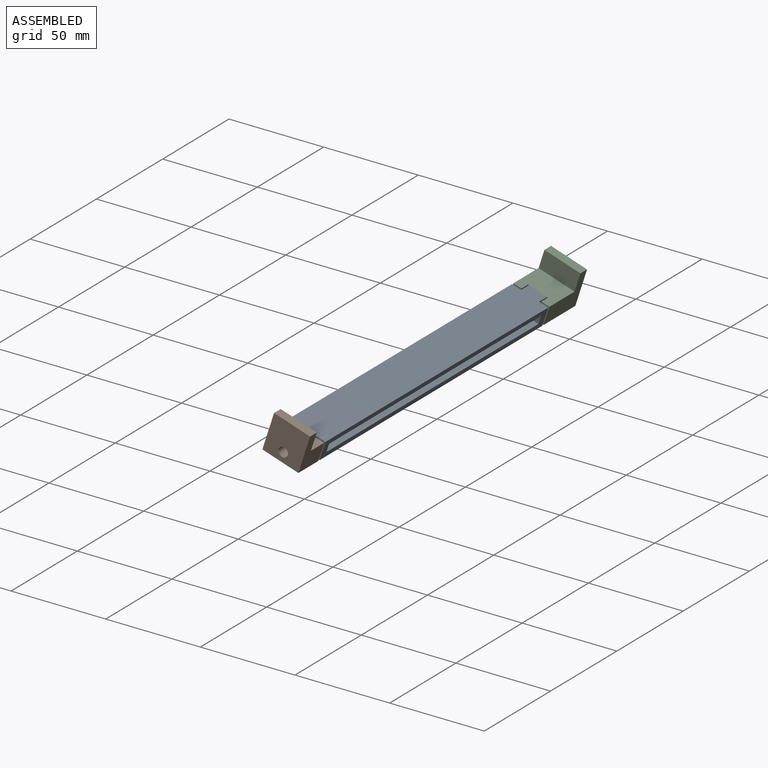
[diagram: assembled view]
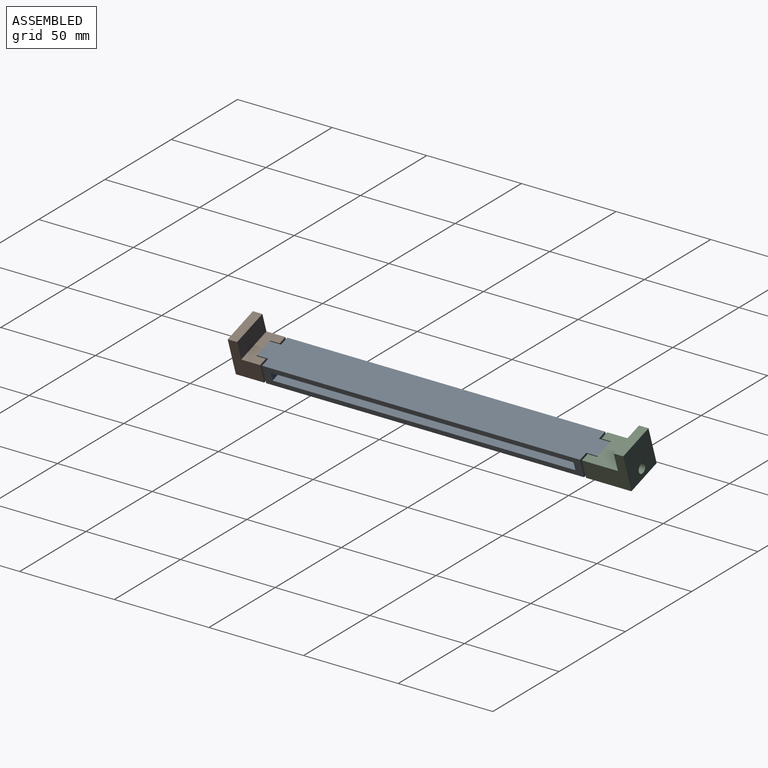
[diagram: assembled view, second angle]
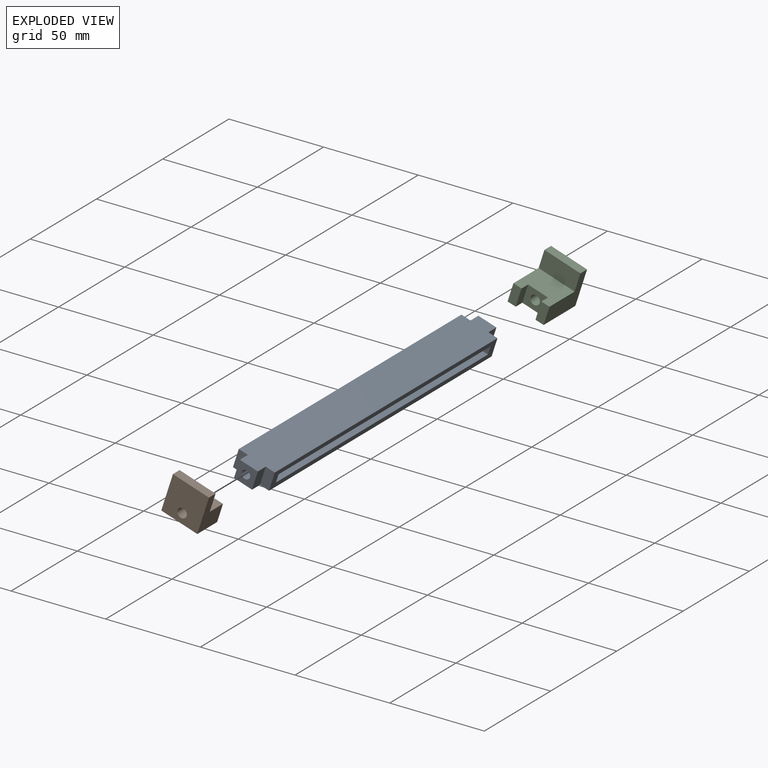
[diagram: exploded view]
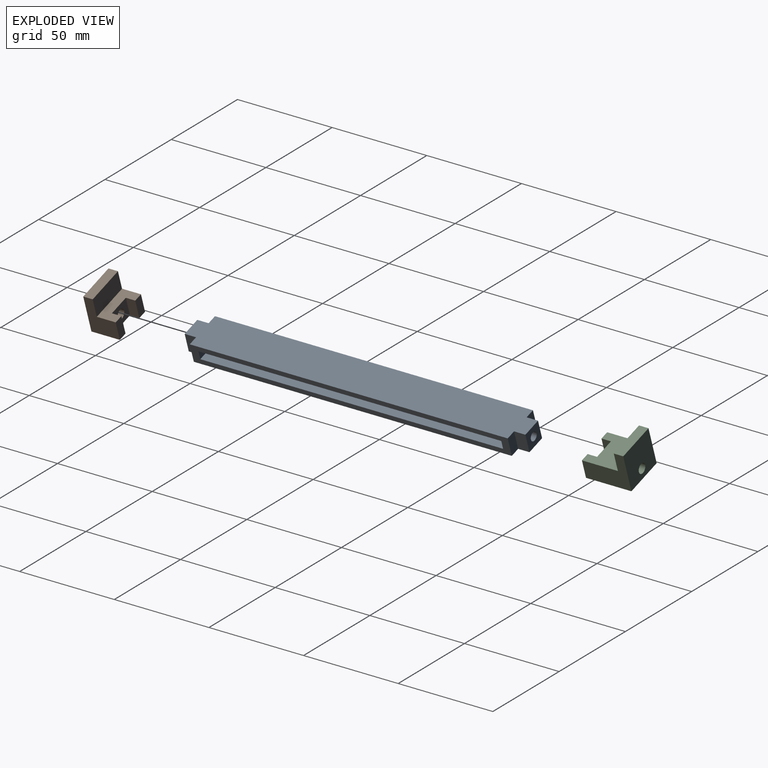
[diagram: exploded view, second angle]
ASSEMBLY  parts=3 mates=2
PART A: 22 faces, bbox 20x180x10 mm
  f0: plane 10x4.5mm, normal (0,-1,0), area 37mm2, adj f12,f17,f19,f21
  f1: plane 10x4.5mm, normal (0,1,0), area 37mm2, adj f12,f17,f19,f20
  f2: plane 10x6mm, normal (-1,0,0), area 60mm2, adj f3,f13,f14,f15
  f3: plane 10x10mm, normal (0,-1,0), area 84.1mm2, adj f2,f4,f14,f15,f20
  f4: plane 10x6mm, normal (1,0,0), area 60mm2, adj f3,f5,f14,f15
  f5: plane 10x5mm, normal (0,-1,0), area 50mm2, adj f4,f6,f14,f15
  f6: plane 168x10mm, normal (1,0,0), area 960mm2, adj f5,f7,f14,f15,f16,f17,f18,f19
  f7: plane 10x5mm, normal (0,1,0), area 50mm2, adj f6,f8,f14,f15
  f8: plane 10x6mm, normal (1,0,0), area 60mm2, adj f7,f9,f14,f15
  f9: plane 10x10mm, normal (0,1,0), area 84.1mm2, adj f8,f10,f14,f15,f21
  f10: plane 10x6mm, normal (-1,0,0), area 60mm2, adj f9,f11,f14,f15
  f11: plane 10x5mm, normal (0,1,0), area 50mm2, adj f10,f12,f14,f15
  f12: plane 168x10mm, normal (-1,0,0), area 960mm2, adj f0,f1,f11,f13,f14,f15,f17,f19
  f13: plane 10x5mm, normal (0,-1,0), area 50mm2, adj f2,f12,f14,f15
  f14: plane 180x20mm, normal (0,0,1), area 3480mm2, adj f2,f3,f4,f5,f6,f7,f8,f9
  f15: plane 180x20mm, normal (0,0,-1), area 3480mm2, adj f2,f3,f4,f5,f6,f7,f8,f9
  f16: plane 10x4.5mm, normal (0,-1,0), area 37mm2, adj f6,f17,f19,f21
  f17: plane 160x20mm, normal (0,0,-1), area 3200mm2, adj f0,f1,f6,f12,f16,f18
  f18: plane 10x4.5mm, normal (0,1,0), area 37mm2, adj f6,f17,f19,f20
  f19: plane 160x20mm, normal (0,0,1), area 3200mm2, adj f0,f1,f6,f12,f16,f18
  f20: cylinder r=2.25mm len=10mm, axis (0,-1,0), area 141.4mm2, adj f1,f3,f18
  f21: cylinder r=2.25mm len=10mm, axis (0,-1,0), area 141.4mm2, adj f0,f9,f16
PART B: 13 faces, bbox 20x15x20 mm
  f0: plane 11x10mm, normal (0,1,0), area 90.4mm2, adj f1,f5,f8,f9,f11
  f1: plane 20x15mm, normal (-1,0,0), area 245mm2, adj f0,f2,f6,f7,f9,f10,f11,f12
  f2: plane 20x20mm, normal (0,-1,0), area 380.4mm2, adj f1,f3,f6,f7,f8
  f3: plane 20x5mm, normal (1,0,0), area 100mm2, adj f2,f4,f6,f7
  f4: plane 20x10mm, normal (0,1,0), area 200mm2, adj f3,f5,f6,f7
  f5: plane 20x10mm, normal (1,0,0), area 145mm2, adj f0,f4,f6,f7,f9,f10,f11,f12
  f6: plane 20x15mm, normal (0,0,1), area 200mm2, adj f1,f2,f3,f4,f5,f10
  f7: plane 20x15mm, normal (0,0,-1), area 200mm2, adj f1,f2,f3,f4,f5,f12
  f8: cylinder r=2.5mm len=10mm, axis (0,-1,0), area 157.1mm2, adj f0,f2
  f9: plane 10x5mm, normal (0,0,-1), area 50mm2, adj f0,f1,f5,f10
  f10: plane 10x4.5mm, normal (0,1,0), area 45mm2, adj f1,f5,f6,f9
  f11: plane 10x5mm, normal (0,0,1), area 50mm2, adj f0,f1,f5,f12
  f12: plane 10x4.5mm, normal (0,1,0), area 45mm2, adj f1,f5,f7,f11
PART C: 13 faces, bbox 20x24x20 mm
  f0: plane 11x10mm, normal (0,1,0), area 90.4mm2, adj f1,f5,f8,f9,f11
  f1: plane 24x20mm, normal (-1,0,0), area 425mm2, adj f0,f2,f6,f7,f9,f10,f11,f12
  f2: plane 20x20mm, normal (0,-1,0), area 380.4mm2, adj f1,f3,f6,f7,f8
  f3: plane 20x5mm, normal (1,0,0), area 100mm2, adj f2,f4,f6,f7
  f4: plane 20x10mm, normal (0,1,0), area 200mm2, adj f3,f5,f6,f7
  f5: plane 20x19mm, normal (1,0,0), area 325mm2, adj f0,f4,f6,f7,f9,f10,f11,f12
  f6: plane 24x20mm, normal (0,0,1), area 290mm2, adj f1,f2,f3,f4,f5,f10
  f7: plane 24x20mm, normal (0,0,-1), area 290mm2, adj f1,f2,f3,f4,f5,f12
  f8: cylinder r=2.5mm len=19mm, axis (0,-1,0), area 298.5mm2, adj f0,f2
  f9: plane 10x5mm, normal (0,0,-1), area 50mm2, adj f0,f1,f5,f10
  f10: plane 10x4.5mm, normal (0,1,0), area 45mm2, adj f1,f5,f6,f9
  f11: plane 10x5mm, normal (0,0,1), area 50mm2, adj f0,f1,f5,f12
  f12: plane 10x4.5mm, normal (0,1,0), area 45mm2, adj f1,f5,f7,f11
PLACE A rot(axis=(-0.16,0,-0.99),180deg) t=(-13.54,304.72,-32.98)mm
PLACE B rot(axis=(0,-1,0),72deg) t=(-13.54,114.72,-32.98)mm
PLACE C rot(axis=(0.81,0,0.59),180deg) t=(-32.57,323.72,-26.8)mm
MATE fastened C.f8 <-> A.f20  axis (0,1,0) through (-21.51,304.72,-25.13)mm
MATE fastened B.f8 <-> A.f20  axis (0,1,0) through (-21.51,124.72,-25.13)mm
